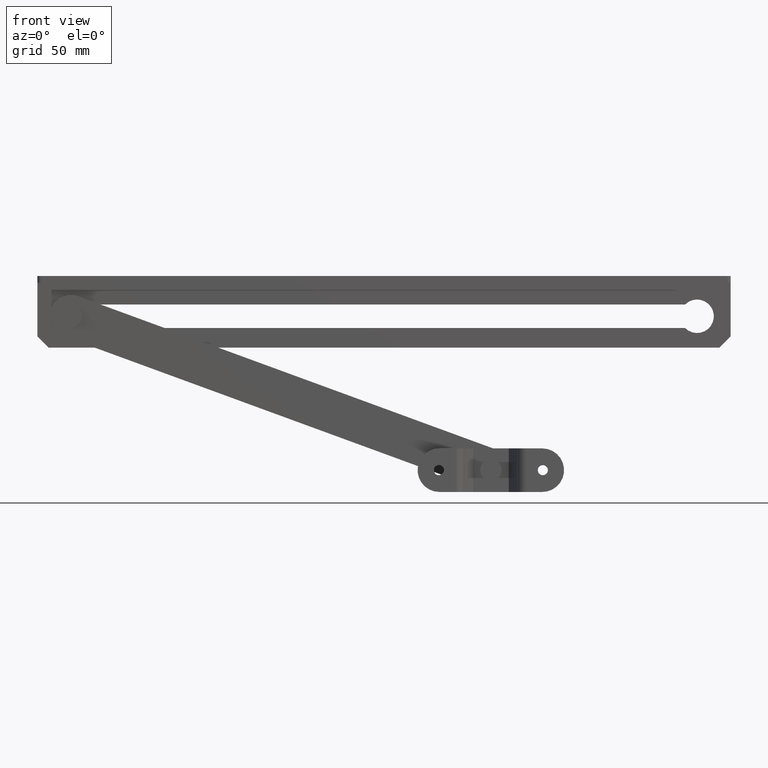
[diagram: clean part render]
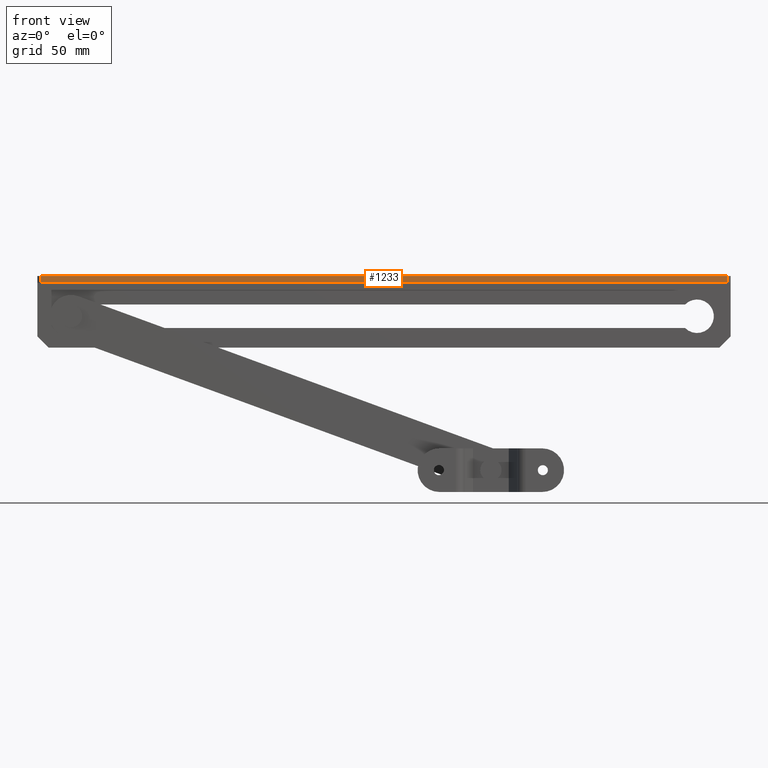
[diagram: same view with one face highlighted and labeled with its STEP entity id]
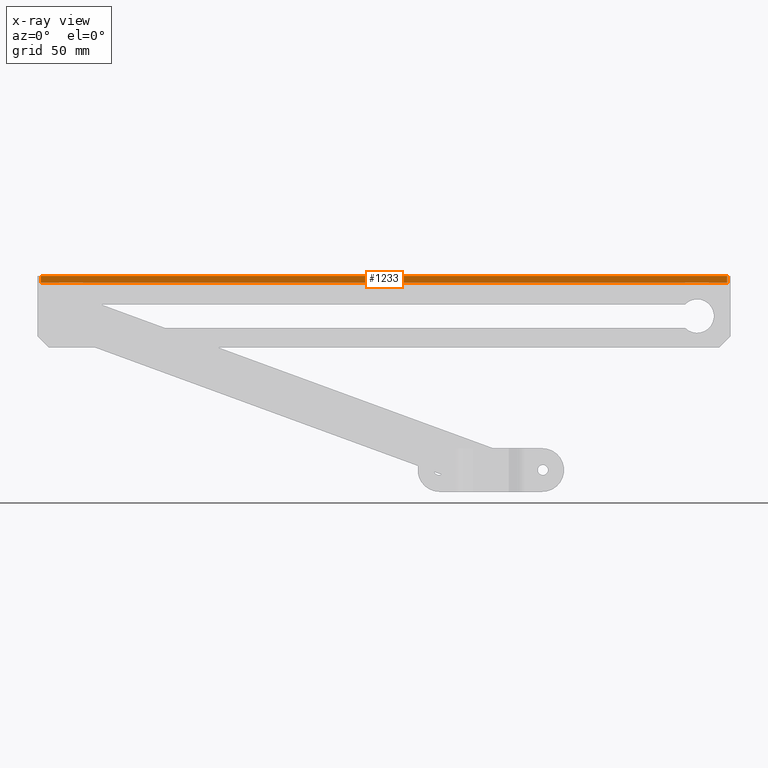
[diagram: x-ray of the same camera — body ghosted, the highlighted face saturated]
A machine part, front view. The second image highlights one B-rep face of the part: STEP entity #1233.
The next image is the same camera in x-ray: the body ghosted, the highlighted face saturated — about 0% of this face is hidden behind the body in this view.
In plain terms, the highlighted planar face has unit normal (0, -1, 0).
Its self-contained STEP definition (entity closure, byte-faithful):
#85=LINE('',#1959,#163);
#87=LINE('',#1965,#165);
#88=LINE('',#1967,#166);
#89=LINE('',#1968,#167);
#163=VECTOR('',#1545,3.00000000000002);
#165=VECTOR('',#1551,307.);
#166=VECTOR('',#1552,2.99999999999998);
#167=VECTOR('',#1553,307.);
#235=PLANE('',#1341);
#371=FACE_OUTER_BOUND('',#461,.T.);
#461=EDGE_LOOP('',(#947,#948,#949,#950));
#668=VERTEX_POINT('',#1956);
#669=VERTEX_POINT('',#1958);
#671=VERTEX_POINT('',#1964);
#672=VERTEX_POINT('',#1966);
#787=EDGE_CURVE('',#668,#669,#85,.T.);
#790=EDGE_CURVE('',#668,#671,#87,.T.);
#791=EDGE_CURVE('',#672,#671,#88,.T.);
#792=EDGE_CURVE('',#672,#669,#89,.T.);
#947=ORIENTED_EDGE('',*,*,#787,.F.);
#948=ORIENTED_EDGE('',*,*,#790,.T.);
#949=ORIENTED_EDGE('',*,*,#791,.F.);
#950=ORIENTED_EDGE('',*,*,#792,.T.);
#1233=ADVANCED_FACE('',(#371),#235,.T.);
#1341=AXIS2_PLACEMENT_3D('',#1963,#1549,#1550);
#1545=DIRECTION('',(0.,0.,-1.));
#1549=DIRECTION('center_axis',(0.,1.,0.));
#1550=DIRECTION('ref_axis',(0.,0.,1.));
#1551=DIRECTION('',(1.,0.,-1.28929125440341E-16));
#1552=DIRECTION('',(7.17109759178041E-17,0.,1.));
#1553=DIRECTION('',(-1.,0.,0.));
#1956=CARTESIAN_POINT('',(-308.5,15.,3.00000000000002));
#1958=CARTESIAN_POINT('',(-308.5,15.,0.));
#1959=CARTESIAN_POINT('',(-308.5,15.,0.75));
#1963=CARTESIAN_POINT('Origin',(-155.,15.,1.5));
#1964=CARTESIAN_POINT('',(-1.49999999999999,15.,2.99999999999998));
#1965=CARTESIAN_POINT('',(-310.,15.,3.00000000000002));
#1966=CARTESIAN_POINT('',(-1.5,15.,0.));
#1967=CARTESIAN_POINT('',(-1.49999999999999,15.,14.25));
#1968=CARTESIAN_POINT('',(0.,15.,0.));